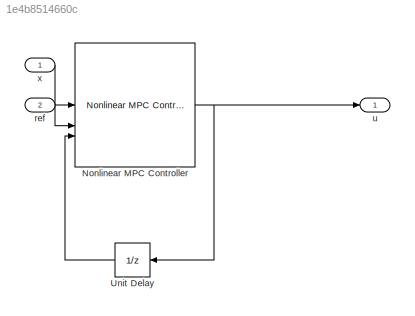
MODEL slx_1e4b8514660c
KIND model
CONFIG AbsTol = auto
CONFIG EnableMultiTasking = off
CONFIG FixedStep = 0.1
CONFIG MaxStep = auto
CONFIG MinStep = auto
CONFIG RelTol = 1e-3
CONFIG SampleTimeConstraint = Unconstrained
CONFIG SolverName = FixedStepDiscrete
CONFIG StartTime = 0.0
CONFIG StopTime = 10.0
BLOCK [Reference] Nonlinear MPC Controller  REF=mpclib/Nonlinear MPC Controller  (lib defined in mdl_ae329e0e0455)
  SourceBlock = mpclib/Nonlinear MPC Controller
  SourceType = NonlinearMPC
BLOCK [UnitDelay] Unit Delay
  HasFrameUpgradeWarning = on
  NameLocation = top
  SampleTime = -1
BLOCK [Inport] ref
  Port = 2
  PortDimensions = [1 4]
BLOCK [Outport] u
BLOCK [Inport] x
  PortDimensions = [1 4]
NET Nonlinear MPC Controller:1 -> Unit Delay:1, u:1
LINE Unit Delay:1 -> Nonlinear MPC Controller:3
LINE ref:1 -> Nonlinear MPC Controller:2
LINE x:1 -> Nonlinear MPC Controller:1
note: NET lines group one-source signal fan-out (src -> all destinations, sorted); 1:1 wires keep LINE
